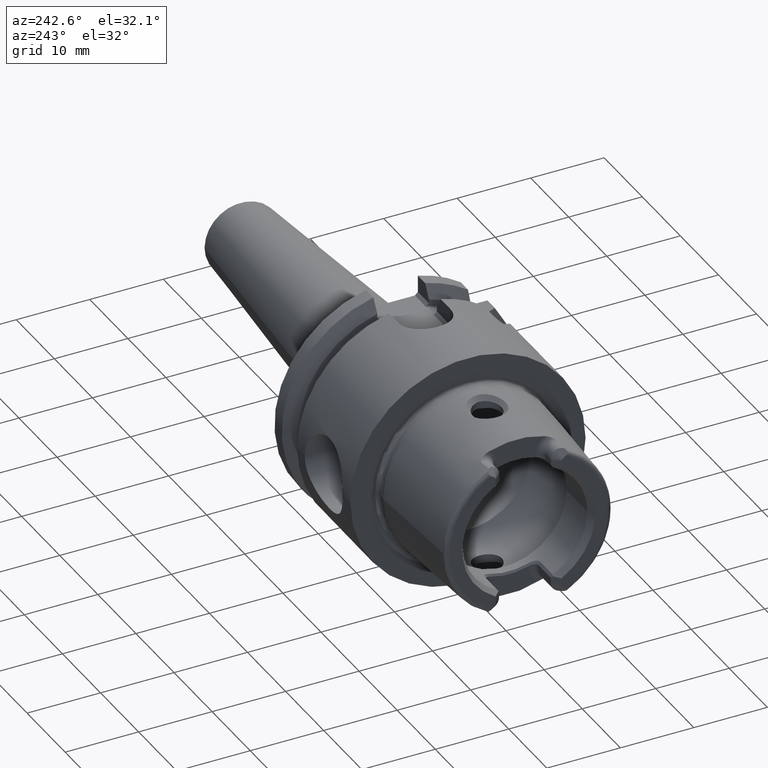
[diagram: clean part render]
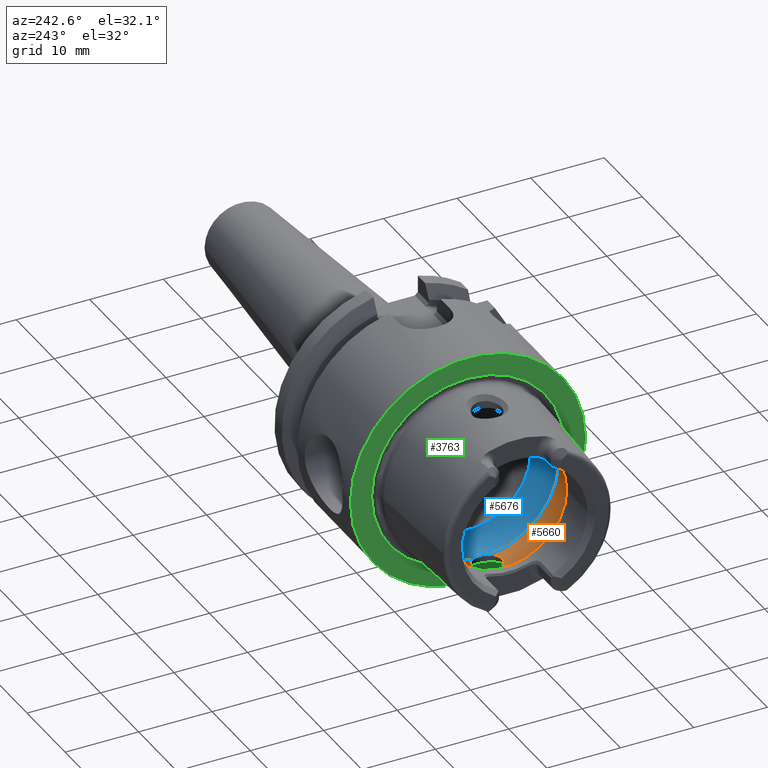
[diagram: same view with three faces highlighted in distinct colors, each labeled with its STEP entity id]
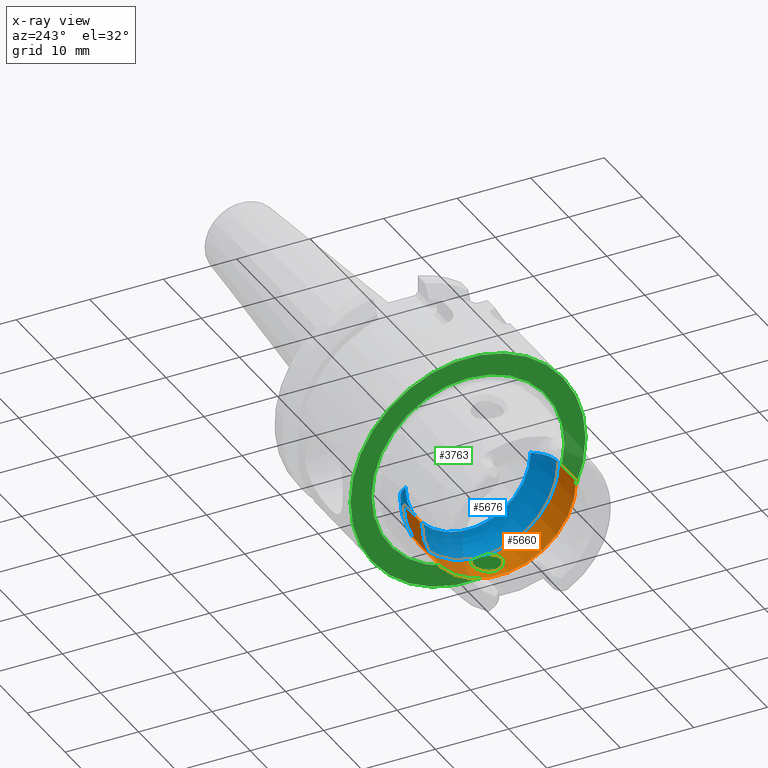
[diagram: x-ray of the same camera — body ghosted, the three highlighted faces saturated]
A machine part, auxiliary view with three faces highlighted in distinct colors.
The next image is the same camera in x-ray (body ghosted, the three faces saturated) — at least one of them is partly hidden behind the body in this view.
Their STEP definitions:

[orange] entity #5660 — the highlighted cylindrical surface (partial cylindrical patch) has radius 10.5325 mm, axis along (1, 0, 0).
#2076=CARTESIAN_POINT('',(-7.E0,0.E0,-1.05325E1));
#2077=CARTESIAN_POINT('',(-7.E0,1.264619597822E-1,-1.05325E1));
#2078=CARTESIAN_POINT('',(-6.976548138496E0,3.745773028060E-1,
-1.052800693825E1));
#2079=CARTESIAN_POINT('',(-6.871231737901E0,7.389152706560E-1,
-1.050852706109E1));
#2080=CARTESIAN_POINT('',(-6.701100529840E0,1.073953427955E0,
-1.047922934199E1));
#2081=CARTESIAN_POINT('',(-6.470376855189E0,1.372959104722E0,
-1.044386094628E1));
#2082=CARTESIAN_POINT('',(-6.190049879546E0,1.622034931154E0,
-1.040765646894E1));
#2083=CARTESIAN_POINT('',(-5.865060775888E0,1.816294076086E0,
-1.037514161203E1));
#2084=CARTESIAN_POINT('',(-5.512049194834E0,1.945619568956E0,
-1.035137716004E1));
#2085=CARTESIAN_POINT('',(-5.136557126525E0,2.007201558407E0,
-1.033947043825E1));
#2086=CARTESIAN_POINT('',(-4.761056854322E0,1.997570308614E0,
-1.034136021452E1));
#2087=CARTESIAN_POINT('',(-4.389850965242E0,1.917084641670E0,
-1.035676051362E1));
#2088=CARTESIAN_POINT('',(-4.042511427872E0,1.769650943472E0,
-1.038331529884E1));
#2089=CARTESIAN_POINT('',(-3.724942571461E0,1.555943571058E0,
-1.041785168933E1));
#2090=CARTESIAN_POINT('',(-3.551820426408E0,1.384841586957E0,
-1.044148728943E1));
#2091=CARTESIAN_POINT('',(-3.472718675620E0,1.291282988427E0,
-1.045304474753E1));
#2093=CARTESIAN_POINT('',(-3.472718675620E0,-1.291282988427E0,
-1.045304474753E1));
#2094=CARTESIAN_POINT('',(-3.552011347422E0,-1.385067401207E0,
-1.044145939419E1));
#2095=CARTESIAN_POINT('',(-3.725469932826E0,-1.556336729189E0,
-1.041779009016E1));
#2096=CARTESIAN_POINT('',(-4.042195159331E0,-1.769419505555E0,
-1.038335220146E1));
#2097=CARTESIAN_POINT('',(-4.389238978270E0,-1.916886075392E0,
-1.035679831737E1));
#2098=CARTESIAN_POINT('',(-4.760420701046E0,-1.997513982763E0,
-1.034137117427E1));
#2099=CARTESIAN_POINT('',(-5.136360219877E0,-2.007222636497E0,
-1.033946612188E1));
#2100=CARTESIAN_POINT('',(-5.511785149440E0,-1.945706973606E0,
-1.035136120220E1));
#2101=CARTESIAN_POINT('',(-5.865356293532E0,-1.816174967303E0,
-1.037516275477E1));
#2102=CARTESIAN_POINT('',(-6.190302106872E0,-1.621866204916E0,
-1.040768489987E1));
#2103=CARTESIAN_POINT('',(-6.470880104140E0,-1.372427438603E0,
-1.044393149696E1));
#2104=CARTESIAN_POINT('',(-6.701318023017E0,-1.073587960229E0,
-1.047926633415E1));
#2105=CARTESIAN_POINT('',(-6.871415942195E0,-7.384420965487E-1,
-1.050855990199E1));
#2106=CARTESIAN_POINT('',(-6.976567670638E0,-3.743664299160E-1,
-1.052801102568E1));
#2107=CARTESIAN_POINT('',(-7.E0,-1.263828513715E-1,-1.05325E1));
#2108=CARTESIAN_POINT('',(-7.E0,0.E0,-1.05325E1));
#2110=CARTESIAN_POINT('',(-3.472718675620E0,0.E0,0.E0));
#2111=DIRECTION('',(-1.E0,0.E0,0.E0));
#2112=DIRECTION('',(0.E0,-1.225998564848E-1,-9.924561830075E-1));
#2113=AXIS2_PLACEMENT_3D('',#2110,#2111,#2112);
#2115=DIRECTION('',(-1.E0,0.E0,0.E0));
#2116=VECTOR('',#2115,4.620227063766E0);
#2117=CARTESIAN_POINT('',(-3.472718675620E0,-1.05325E1,0.E0));
#2118=LINE('',#2117,#2116);
#2119=DIRECTION('',(-1.E0,0.E0,0.E0));
#2120=VECTOR('',#2119,4.620227063766E0);
#2121=CARTESIAN_POINT('',(-3.472718675620E0,1.05325E1,0.E0));
#2122=LINE('',#2121,#2120);
#2123=CARTESIAN_POINT('',(-3.472718675620E0,0.E0,0.E0));
#2124=DIRECTION('',(-1.E0,0.E0,0.E0));
#2125=DIRECTION('',(0.E0,1.E0,0.E0));
#2126=AXIS2_PLACEMENT_3D('',#2123,#2124,#2125);
#2128=CARTESIAN_POINT('',(-3.472718675620E0,1.291282988427E0,
-1.045304474753E1));
#2161=CARTESIAN_POINT('',(-3.472718675620E0,-1.291282988427E0,
-1.045304474753E1));
#2364=CARTESIAN_POINT('',(-8.092945739386E0,0.E0,0.E0));
#2365=DIRECTION('',(-1.E0,0.E0,0.E0));
#2366=DIRECTION('',(0.E0,1.E0,0.E0));
#2367=AXIS2_PLACEMENT_3D('',#2364,#2365,#2366);
#2959=CARTESIAN_POINT('',(-7.E0,0.E0,-1.05325E1));
#2960=VERTEX_POINT('',#2959);
#2977=CARTESIAN_POINT('',(-3.472718675620E0,1.05325E1,0.E0));
#2978=VERTEX_POINT('',#2977);
#2979=CARTESIAN_POINT('',(-8.092945739386E0,1.05325E1,0.E0));
#2980=VERTEX_POINT('',#2979);
#2989=CARTESIAN_POINT('',(-3.472718675620E0,-1.05325E1,0.E0));
#2990=VERTEX_POINT('',#2989);
#2991=CARTESIAN_POINT('',(-8.092945739386E0,-1.05325E1,0.E0));
#2992=VERTEX_POINT('',#2991);
#3009=VERTEX_POINT('',#2128);
#3010=VERTEX_POINT('',#2161);
#5643=CARTESIAN_POINT('',(-1.70925E1,0.E0,0.E0));
#5644=DIRECTION('',(1.E0,0.E0,0.E0));
#5645=DIRECTION('',(0.E0,-1.E0,0.E0));
#5646=AXIS2_PLACEMENT_3D('',#5643,#5644,#5645);
#5647=CYLINDRICAL_SURFACE('',#5646,1.05325E1);
#5648=ORIENTED_EDGE('',*,*,#5597,.F.);
#5649=ORIENTED_EDGE('',*,*,#5397,.F.);
#5651=ORIENTED_EDGE('',*,*,#5650,.T.);
#5652=ORIENTED_EDGE('',*,*,#5636,.T.);
#5654=ORIENTED_EDGE('',*,*,#5653,.F.);
#5655=ORIENTED_EDGE('',*,*,#5632,.F.);
#5657=ORIENTED_EDGE('',*,*,#5656,.T.);
#5658=EDGE_LOOP('',(#5648,#5649,#5651,#5652,#5654,#5655,#5657));
#5659=FACE_OUTER_BOUND('',#5658,.F.);
#5660=ADVANCED_FACE('',(#5659),#5647,.F.);
#2092=B_SPLINE_CURVE_WITH_KNOTS('',3,(#2076,#2077,#2078,#2079,#2080,#2081,#2082,
#2083,#2084,#2085,#2086,#2087,#2088,#2089,#2090,#2091),.UNSPECIFIED.,.F.,.F.,(4,
1,1,1,1,1,1,1,1,1,1,1,1,4),(0.E0,7.692307692308E-2,1.538461538462E-1,
2.307692307692E-1,3.076923076923E-1,3.846153846154E-1,4.615384615385E-1,
5.384615384615E-1,6.153846153846E-1,6.923076923077E-1,7.692307692308E-1,
8.461538461538E-1,9.230769230769E-1,1.E0),.UNSPECIFIED.);
#2109=B_SPLINE_CURVE_WITH_KNOTS('',3,(#2093,#2094,#2095,#2096,#2097,#2098,#2099,
#2100,#2101,#2102,#2103,#2104,#2105,#2106,#2107,#2108),.UNSPECIFIED.,.F.,.F.,(4,
1,1,1,1,1,1,1,1,1,1,1,1,4),(0.E0,7.692307692308E-2,1.538461538462E-1,
2.307692307692E-1,3.076923076923E-1,3.846153846154E-1,4.615384615385E-1,
5.384615384615E-1,6.153846153846E-1,6.923076923077E-1,7.692307692308E-1,
8.461538461538E-1,9.230769230769E-1,1.E0),.UNSPECIFIED.);
#2114=CIRCLE('',#2113,1.05325E1);
#2127=CIRCLE('',#2126,1.05325E1);
#2368=CIRCLE('',#2367,1.05325E1);
#5397=EDGE_CURVE('',#3010,#2960,#2109,.T.);
#5597=EDGE_CURVE('',#2960,#3009,#2092,.T.);
#5632=EDGE_CURVE('',#2978,#2980,#2122,.T.);
#5636=EDGE_CURVE('',#2990,#2992,#2118,.T.);
#5650=EDGE_CURVE('',#3010,#2990,#2114,.T.);
#5653=EDGE_CURVE('',#2980,#2992,#2368,.T.);
#5656=EDGE_CURVE('',#2978,#3009,#2127,.T.);

[blue] entity #5676 — the highlighted toroidal blend (fillet) surface has major radius 6.5325 mm and minor (blend) radius 4 mm.
#2110=CARTESIAN_POINT('',(-3.472718675620E0,0.E0,0.E0));
#2111=DIRECTION('',(-1.E0,0.E0,0.E0));
#2112=DIRECTION('',(0.E0,-1.225998564848E-1,-9.924561830075E-1));
#2113=AXIS2_PLACEMENT_3D('',#2110,#2111,#2112);
#2123=CARTESIAN_POINT('',(-3.472718675620E0,0.E0,0.E0));
#2124=DIRECTION('',(-1.E0,0.E0,0.E0));
#2125=DIRECTION('',(0.E0,1.E0,0.E0));
#2126=AXIS2_PLACEMENT_3D('',#2123,#2124,#2125);
#2128=CARTESIAN_POINT('',(-3.472718675620E0,1.291282988427E0,
-1.045304474753E1));
#2129=CARTESIAN_POINT('',(-3.400432544214E0,1.205785650123E0,
-1.046360638399E1));
#2130=CARTESIAN_POINT('',(-3.267257322837E0,1.019454843645E0,
-1.048057496790E1));
#2131=CARTESIAN_POINT('',(-3.111718581191E0,6.921086437112E-1,
-1.049590836050E1));
#2132=CARTESIAN_POINT('',(-3.018836066332E0,3.417574749764E-1,
-1.050317218170E1));
#2133=CARTESIAN_POINT('',(-3.E0,1.126018428041E-1,-1.050446891399E1));
#2134=CARTESIAN_POINT('',(-3.E0,0.E0,-1.050446891399E1));
#2136=CARTESIAN_POINT('',(-3.472718675620E0,6.5325E0,0.E0));
#2137=DIRECTION('',(0.E0,0.E0,1.E0));
#2138=DIRECTION('',(8.681796689050E-1,4.9625E-1,0.E0));
#2139=AXIS2_PLACEMENT_3D('',#2136,#2137,#2138);
#2141=CARTESIAN_POINT('',(0.E0,0.E0,0.E0));
#2142=DIRECTION('',(-1.E0,0.E0,0.E0));
#2143=DIRECTION('',(0.E0,1.E0,0.E0));
#2144=AXIS2_PLACEMENT_3D('',#2141,#2142,#2143);
#2146=CARTESIAN_POINT('',(-3.472718675620E0,-6.5325E0,0.E0));
#2147=DIRECTION('',(0.E0,0.E0,-1.E0));
#2148=DIRECTION('',(8.681796689050E-1,-4.9625E-1,0.E0));
#2149=AXIS2_PLACEMENT_3D('',#2146,#2147,#2148);
#2151=CARTESIAN_POINT('',(-3.E0,0.E0,-1.050446891399E1));
#2152=CARTESIAN_POINT('',(-3.E0,-5.854335763338E-2,-1.050446891399E1));
#2153=CARTESIAN_POINT('',(-3.005144297219E0,-1.756249472105E-1,
-1.050410486731E1));
#2154=CARTESIAN_POINT('',(-3.028230138339E0,-3.498790405816E-1,
-1.050241437513E1));
#2155=CARTESIAN_POINT('',(-3.066503730607E0,-5.214228382588E-1,
-1.049942451873E1));
#2156=CARTESIAN_POINT('',(-3.119664198996E0,-6.889297838518E-1,
-1.049488513413E1));
#2157=CARTESIAN_POINT('',(-3.187292276620E0,-8.510998031881E-1,
-1.048846227005E1));
#2158=CARTESIAN_POINT('',(-3.268834041823E0,-1.006644468235E0,
-1.047975517549E1));
#2159=CARTESIAN_POINT('',(-3.363616242062E0,-1.154336969465E0,
-1.046831296744E1));
#2160=CARTESIAN_POINT('',(-3.435072142508E0,-1.246756074137E0,
-1.045854523550E1));
#2161=CARTESIAN_POINT('',(-3.472718675620E0,-1.291282988427E0,
-1.045304474753E1));
#2961=CARTESIAN_POINT('',(-3.E0,0.E0,-1.050446891399E1));
#2962=VERTEX_POINT('',#2961);
#2975=CARTESIAN_POINT('',(0.E0,8.5175E0,0.E0));
#2976=VERTEX_POINT('',#2975);
#2977=CARTESIAN_POINT('',(-3.472718675620E0,1.05325E1,0.E0));
#2978=VERTEX_POINT('',#2977);
#2987=CARTESIAN_POINT('',(0.E0,-8.5175E0,0.E0));
#2988=VERTEX_POINT('',#2987);
#2989=CARTESIAN_POINT('',(-3.472718675620E0,-1.05325E1,0.E0));
#2990=VERTEX_POINT('',#2989);
#3009=VERTEX_POINT('',#2128);
#3010=VERTEX_POINT('',#2161);
#5661=CARTESIAN_POINT('',(-3.472718675620E0,0.E0,0.E0));
#5662=DIRECTION('',(1.E0,0.E0,0.E0));
#5663=DIRECTION('',(0.E0,-1.E0,0.E0));
#5664=AXIS2_PLACEMENT_3D('',#5661,#5662,#5663);
#5665=TOROIDAL_SURFACE('',#5664,6.5325E0,4.E0);
#5666=ORIENTED_EDGE('',*,*,#5599,.F.);
#5667=ORIENTED_EDGE('',*,*,#5656,.F.);
#5668=ORIENTED_EDGE('',*,*,#5618,.F.);
#5670=ORIENTED_EDGE('',*,*,#5669,.T.);
#5671=ORIENTED_EDGE('',*,*,#5614,.T.);
#5672=ORIENTED_EDGE('',*,*,#5650,.F.);
#5673=ORIENTED_EDGE('',*,*,#5395,.F.);
#5674=EDGE_LOOP('',(#5666,#5667,#5668,#5670,#5671,#5672,#5673));
#5675=FACE_OUTER_BOUND('',#5674,.F.);
#5676=ADVANCED_FACE('',(#5675),#5665,.F.);
#2114=CIRCLE('',#2113,1.05325E1);
#2127=CIRCLE('',#2126,1.05325E1);
#2135=B_SPLINE_CURVE_WITH_KNOTS('',3,(#2128,#2129,#2130,#2131,#2132,#2133,
#2134),.UNSPECIFIED.,.F.,.F.,(4,1,1,1,4),(0.E0,2.5E-1,5.E-1,7.5E-1,1.E0),
.UNSPECIFIED.);
#2140=CIRCLE('',#2139,4.E0);
#2145=CIRCLE('',#2144,8.5175E0);
#2150=CIRCLE('',#2149,4.E0);
#2162=B_SPLINE_CURVE_WITH_KNOTS('',3,(#2151,#2152,#2153,#2154,#2155,#2156,#2157,
#2158,#2159,#2160,#2161),.UNSPECIFIED.,.F.,.F.,(4,1,1,1,1,1,1,1,4),(0.E0,
1.25E-1,2.5E-1,3.75E-1,5.E-1,6.25E-1,7.5E-1,8.75E-1,1.E0),.UNSPECIFIED.);
#5395=EDGE_CURVE('',#2962,#3010,#2162,.T.);
#5599=EDGE_CURVE('',#3009,#2962,#2135,.T.);
#5614=EDGE_CURVE('',#2988,#2990,#2150,.T.);
#5618=EDGE_CURVE('',#2976,#2978,#2140,.T.);
#5650=EDGE_CURVE('',#3010,#2990,#2114,.T.);
#5656=EDGE_CURVE('',#2978,#3009,#2127,.T.);
#5669=EDGE_CURVE('',#2976,#2988,#2145,.T.);

[green] entity #3763 — the highlighted planar face has unit normal (1, 0, 0).
#652=CARTESIAN_POINT('',(0.E0,0.E0,0.E0));
#653=DIRECTION('',(1.E0,0.E0,0.E0));
#654=DIRECTION('',(0.E0,1.E0,0.E0));
#655=AXIS2_PLACEMENT_3D('',#652,#653,#654);
#657=CARTESIAN_POINT('',(0.E0,0.E0,0.E0));
#658=DIRECTION('',(-1.E0,0.E0,0.E0));
#659=DIRECTION('',(0.E0,1.E0,0.E0));
#660=AXIS2_PLACEMENT_3D('',#657,#658,#659);
#662=CARTESIAN_POINT('',(0.E0,0.E0,0.E0));
#663=DIRECTION('',(-1.E0,0.E0,0.E0));
#664=DIRECTION('',(0.E0,-1.E0,0.E0));
#665=AXIS2_PLACEMENT_3D('',#662,#663,#664);
#667=CARTESIAN_POINT('',(0.E0,0.E0,0.E0));
#668=DIRECTION('',(-1.E0,0.E0,0.E0));
#669=DIRECTION('',(0.E0,1.E0,0.E0));
#670=AXIS2_PLACEMENT_3D('',#667,#668,#669);
#2614=CARTESIAN_POINT('',(0.E0,-1.311372602740E1,0.E0));
#2615=VERTEX_POINT('',#2614);
#2616=CARTESIAN_POINT('',(0.E0,1.311372602740E1,0.E0));
#2617=VERTEX_POINT('',#2616);
#2963=CARTESIAN_POINT('',(0.E0,1.6E1,0.E0));
#2964=CARTESIAN_POINT('',(0.E0,-1.6E1,0.E0));
#2965=VERTEX_POINT('',#2963);
#2966=VERTEX_POINT('',#2964);
#3748=CARTESIAN_POINT('',(0.E0,0.E0,0.E0));
#3749=DIRECTION('',(1.E0,0.E0,0.E0));
#3750=DIRECTION('',(0.E0,-1.E0,0.E0));
#3751=AXIS2_PLACEMENT_3D('',#3748,#3749,#3750);
#3752=PLANE('',#3751);
#3754=ORIENTED_EDGE('',*,*,#3753,.T.);
#3756=ORIENTED_EDGE('',*,*,#3755,.F.);
#3757=EDGE_LOOP('',(#3754,#3756));
#3758=FACE_OUTER_BOUND('',#3757,.F.);
#3759=ORIENTED_EDGE('',*,*,#3743,.T.);
#3760=ORIENTED_EDGE('',*,*,#3727,.T.);
#3761=EDGE_LOOP('',(#3759,#3760));
#3762=FACE_BOUND('',#3761,.F.);
#3763=ADVANCED_FACE('',(#3758,#3762),#3752,.F.);
#656=CIRCLE('',#655,1.6E1);
#661=CIRCLE('',#660,1.6E1);
#666=CIRCLE('',#665,1.311372602740E1);
#671=CIRCLE('',#670,1.311372602740E1);
#3727=EDGE_CURVE('',#2617,#2615,#671,.T.);
#3743=EDGE_CURVE('',#2615,#2617,#666,.T.);
#3753=EDGE_CURVE('',#2965,#2966,#656,.T.);
#3755=EDGE_CURVE('',#2965,#2966,#661,.T.);